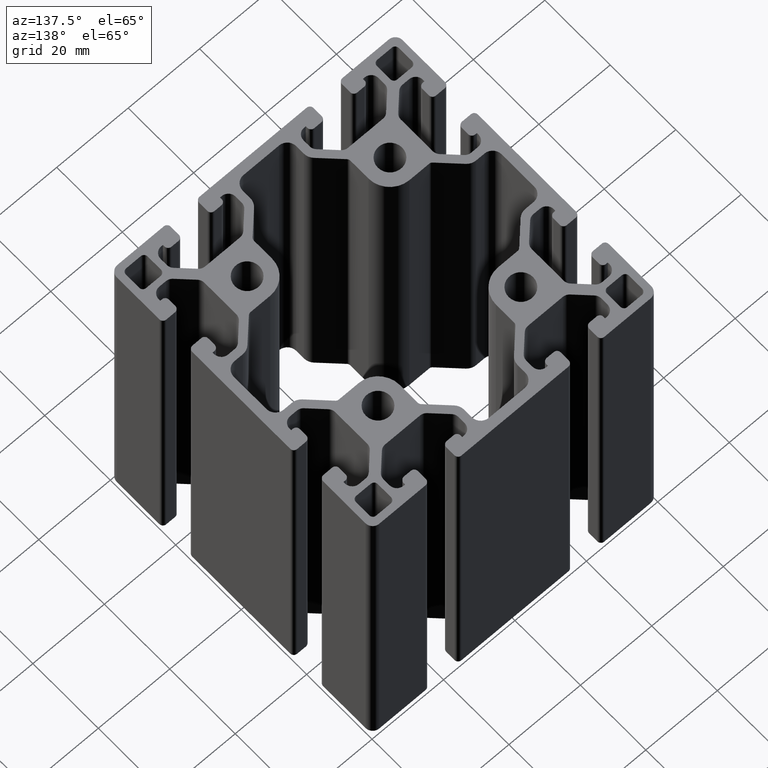
[diagram: clean part render]
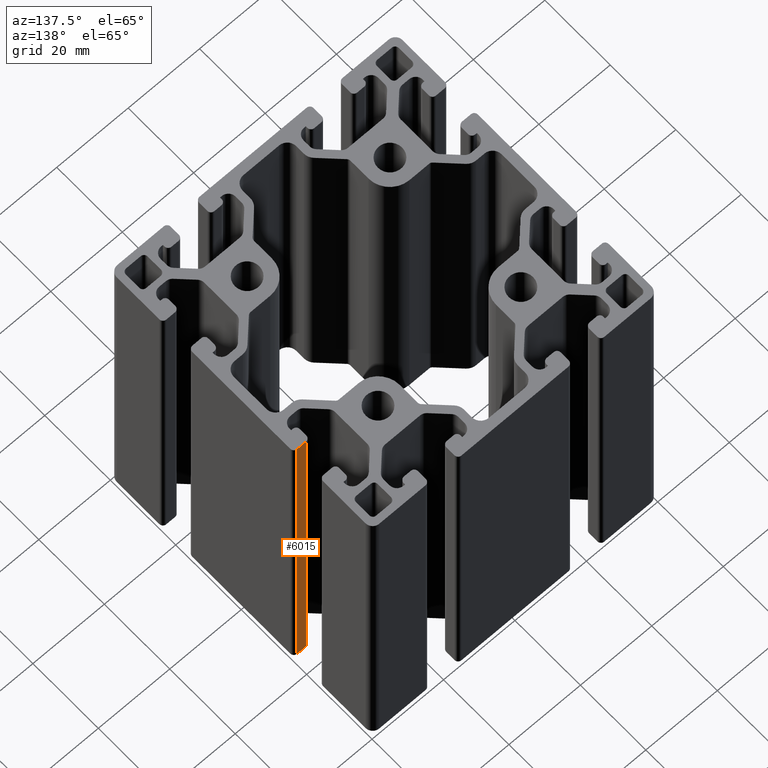
[diagram: same view with one face highlighted and labeled with its STEP entity id]
A machine part, auxiliary view. The second image highlights one B-rep face of the part: STEP entity #6015.
In plain terms, the highlighted planar face has unit normal (0, -1, 0).
Its self-contained STEP definition (entity closure, byte-faithful):
#89=PLANE('',#6435);
#305=FACE_OUTER_BOUND('',#617,.T.);
#617=EDGE_LOOP('',(#4341,#4342,#4343,#4344));
#1002=LINE('',#9164,#1626);
#1050=LINE('',#9304,#1674);
#1051=LINE('',#9307,#1675);
#1052=LINE('',#9308,#1676);
#1626=VECTOR('',#7328,100.);
#1674=VECTOR('',#7464,100.);
#1675=VECTOR('',#7469,2.5000039918977);
#1676=VECTOR('',#7470,2.5000039918977);
#2550=VERTEX_POINT('',#9158);
#2552=VERTEX_POINT('',#9162);
#2599=VERTEX_POINT('',#9301);
#2600=VERTEX_POINT('',#9303);
#3248=EDGE_CURVE('',#2552,#2550,#1002,.T.);
#3317=EDGE_CURVE('',#2600,#2599,#1050,.T.);
#3319=EDGE_CURVE('',#2550,#2599,#1051,.T.);
#3320=EDGE_CURVE('',#2600,#2552,#1052,.T.);
#4341=ORIENTED_EDGE('',*,*,#3319,.F.);
#4342=ORIENTED_EDGE('',*,*,#3248,.F.);
#4343=ORIENTED_EDGE('',*,*,#3320,.F.);
#4344=ORIENTED_EDGE('',*,*,#3317,.T.);
#6015=ADVANCED_FACE('',(#305),#89,.F.);
#6435=AXIS2_PLACEMENT_3D('',#9306,#7467,#7468);
#7328=DIRECTION('',(0.,0.,1.));
#7464=DIRECTION('',(0.,0.,1.));
#7467=DIRECTION('center_axis',(0.,-1.,0.));
#7468=DIRECTION('ref_axis',(1.,0.,0.));
#7469=DIRECTION('',(-1.,0.,0.));
#7470=DIRECTION('',(1.,0.,0.));
#9158=CARTESIAN_POINT('',(39.0000019959488,16.,100.));
#9162=CARTESIAN_POINT('',(39.0000019959488,16.,0.));
#9164=CARTESIAN_POINT('',(39.0000019959488,16.,0.));
#9301=CARTESIAN_POINT('',(36.4999980040511,16.,100.));
#9303=CARTESIAN_POINT('',(36.4999980040511,16.,0.));
#9304=CARTESIAN_POINT('',(36.4999980040511,16.,0.));
#9306=CARTESIAN_POINT('Origin',(36.4999980040511,16.,0.));
#9307=CARTESIAN_POINT('',(18.2499990020256,16.,100.));
#9308=CARTESIAN_POINT('',(18.2499990020256,16.,0.));